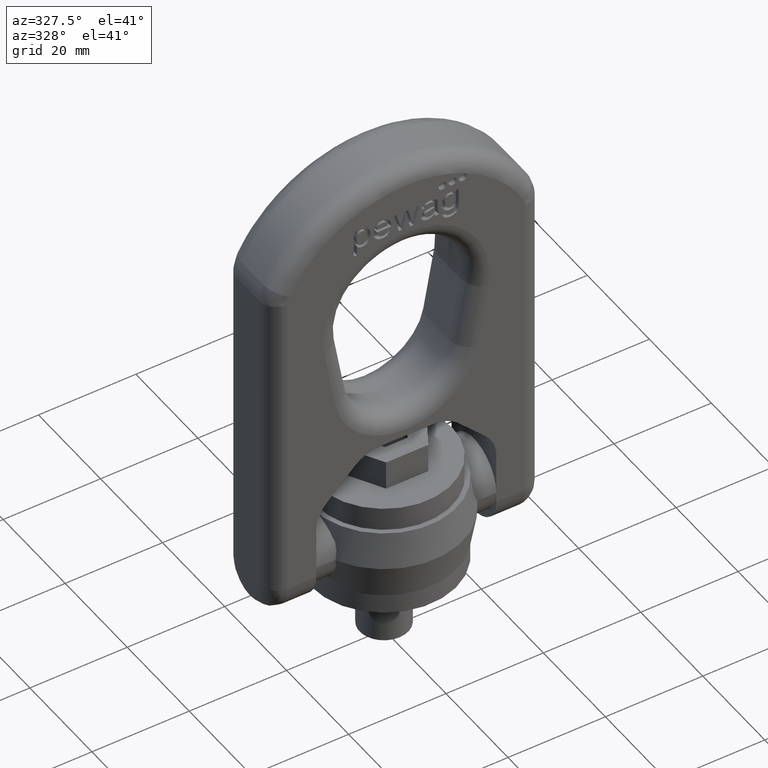
[diagram: clean part render]
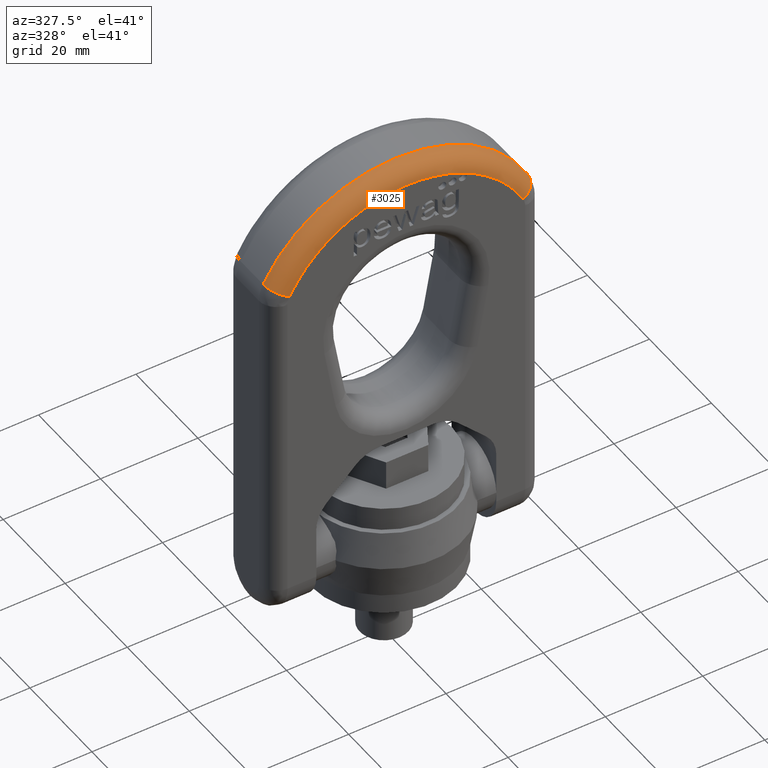
[diagram: same view with one face highlighted and labeled with its STEP entity id]
A machine part, auxiliary view. The second image highlights one B-rep face of the part: STEP entity #3025.
In plain terms, the highlighted toroidal blend (fillet) surface has major radius 27.1778 mm and minor (blend) radius 3.6 mm.
Its self-contained STEP definition (entity closure, byte-faithful):
#201=TOROIDAL_SURFACE('',#6039,27.1777777777778,3.6);
#2650=FACE_OUTER_BOUND('',#3418,.T.);
#3025=ADVANCED_FACE('',(#2650),#201,.T.);
#3418=EDGE_LOOP('',(#4637,#4638,#4639,#4640));
#4637=ORIENTED_EDGE('',*,*,#5733,.F.);
#4638=ORIENTED_EDGE('',*,*,#5182,.F.);
#4639=ORIENTED_EDGE('',*,*,#5735,.T.);
#4640=ORIENTED_EDGE('',*,*,#5371,.F.);
#4748=VERTEX_POINT('',#7080);
#4749=VERTEX_POINT('',#7082);
#4927=VERTEX_POINT('',#7761);
#4930=VERTEX_POINT('',#7766);
#5182=EDGE_CURVE('',#4748,#4749,#5766,.T.);
#5371=EDGE_CURVE('',#4930,#4927,#5792,.T.);
#5733=EDGE_CURVE('',#4749,#4930,#5811,.T.);
#5735=EDGE_CURVE('',#4748,#4927,#5813,.T.);
#5766=CIRCLE('',#5872,27.1777777777778);
#5792=CIRCLE('',#5905,30.7777777777778);
#5811=CIRCLE('',#6036,3.6);
#5813=CIRCLE('',#6038,3.6);
#5872=AXIS2_PLACEMENT_3D('',#7081,#6202,#6203);
#5905=AXIS2_PLACEMENT_3D('',#7767,#6363,#6364);
#6036=AXIS2_PLACEMENT_3D('',#9737,#6880,#6881);
#6038=AXIS2_PLACEMENT_3D('',#9771,#6884,#6885);
#6039=AXIS2_PLACEMENT_3D('',#9772,#6886,#6887);
#6202=DIRECTION('',(0.,-1.,0.));
#6203=DIRECTION('',(0.,0.,-1.));
#6363=DIRECTION('',(0.,1.,0.));
#6364=DIRECTION('',(0.,0.,-1.));
#6880=DIRECTION('',(-0.470899961611152,0.,-0.882186616399623));
#6881=DIRECTION('',(0.882186616399623,0.,-0.470899961611152));
#6884=DIRECTION('',(-0.470899961611152,0.,0.882186616399623));
#6885=DIRECTION('',(-0.882186616399623,0.,-0.470899961611152));
#6886=DIRECTION('',(0.,-1.,0.));
#6887=DIRECTION('',(0.,0.,-1.));
#7080=CARTESIAN_POINT('',(23.9758718190387,-7.2,76.0202367344542));
#7081=CARTESIAN_POINT('',(0.,-7.2,63.2222222222222));
#7082=CARTESIAN_POINT('',(-23.9758718190386,-7.2,76.0202367344542));
#7761=CARTESIAN_POINT('',(27.1517436380773,-3.6,77.7154765962543));
#7766=CARTESIAN_POINT('',(-27.1517436380773,-3.6,77.7154765962543));
#7767=CARTESIAN_POINT('',(0.,-3.6,63.2222222222222));
#9737=CARTESIAN_POINT('',(-23.9758718190386,-3.6,76.0202367344542));
#9771=CARTESIAN_POINT('',(23.9758718190387,-3.6,76.0202367344542));
#9772=CARTESIAN_POINT('',(0.,-3.6,63.2222222222222));